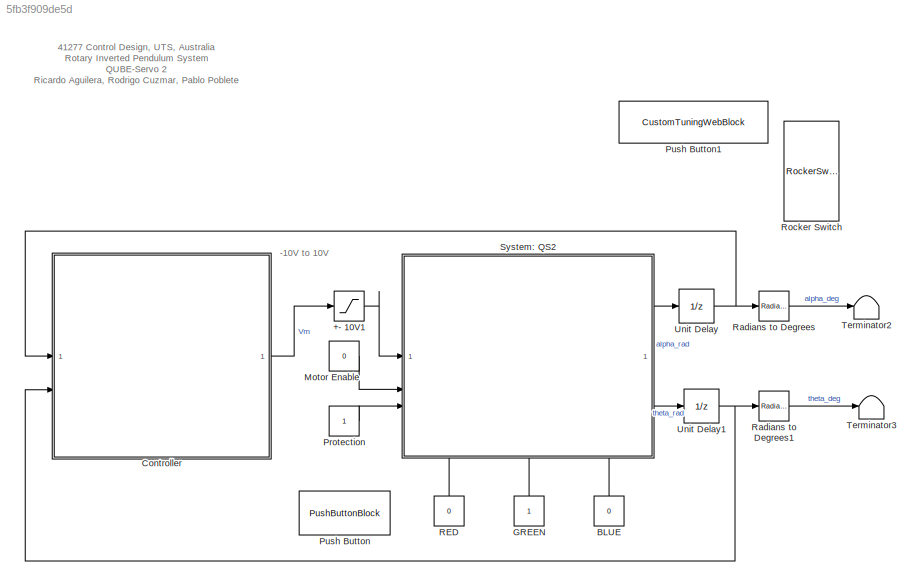
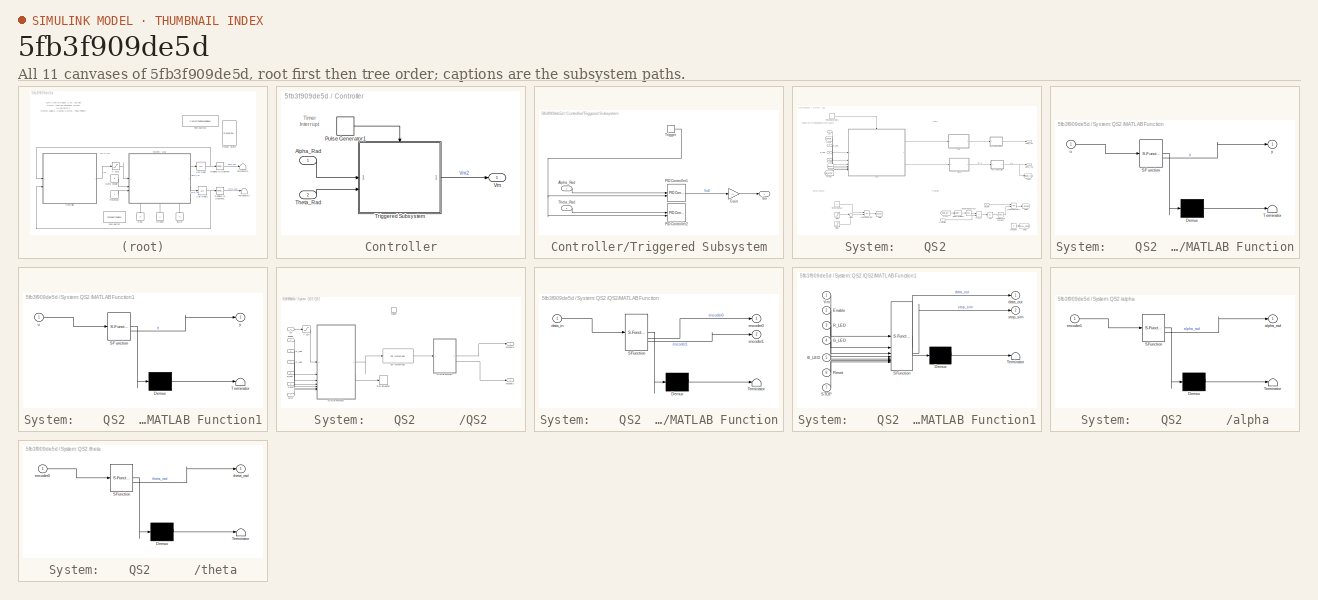
[diagram: thumbnail index - all 11 canvases of the model, root first then tree order]
MODEL slx_5fb3f909de5d
KIND model
CONFIG AbsTol = auto
CONFIG EnableMultiTasking = on
CONFIG FixedStep = auto
CONFIG InitFcn = run('Teensy41_system_init.m');
CONFIG MaxStep = auto
CONFIG MinStep = auto
CONFIG RelTol = 1e-3
CONFIG SampleTimeConstraint = Unconstrained
CONFIG SolverName = FixedStepAuto
CONFIG StartTime = 0.0
CONFIG StopFcn = run('Teensy41_to_save_data.m');
CONFIG StopTime = inf
BLOCK [Saturate] +- 10V1
  LowerLimit = -10
  UpperLimit = 10
BLOCK [Constant] BLUE
  Value = 0
BLOCK [SubSystem] Controller
  TreatAsAtomicUnit = on
BLOCK [Inport] Controller/Alpha_Rad
BLOCK [DiscretePulseGenerator] Controller/Pulse Generator1
  Period = ts
  PulseType = Time based
  PulseWidth = 50
BLOCK [Inport] Controller/Theta_Rad
  Port = 2
BLOCK [SubSystem] Controller/Triggered Subsystem
  TreatAsAtomicUnit = on
BLOCK [Inport] Controller/Triggered Subsystem/Alpha_Rad 
BLOCK [Gain] Controller/Triggered Subsystem/Gain
  Gain = -1
BLOCK [Reference] Controller/Triggered Subsystem/PID Controller1  REF=slpidlib/PID Controller
  LibrarySourceBlock = simulink/Continuous/PID Controller
  SourceBlock = slpidlib/PID Controller
  SourceType = PID 1dof
BLOCK [Reference] Controller/Triggered Subsystem/PID Controller2  REF=slpidlib/PID Controller
  LibrarySourceBlock = simulink/Continuous/PID Controller
  SourceBlock = slpidlib/PID Controller
  SourceType = PID 1dof
BLOCK [Inport] Controller/Triggered Subsystem/Theta_Rad
  Port = 2
BLOCK [TriggerPort] Controller/Triggered Subsystem/Trigger
  ShowOutputPort = on
  StatesWhenEnabling = held
  VariantControl = (inherit)
BLOCK [Outport] Controller/Triggered Subsystem/Vm
BLOCK [Outport] Controller/Vm
BLOCK [Constant] GREEN
BLOCK [Constant] Motor Enable
  Value = 0
BLOCK [Constant] Protection
BLOCK [PushButtonBlock] Push Button
  ButtonText = Sensor Reset
  OffValue = 0.000000
BLOCK [CustomTuningWebBlock] Push Button1
  Configuration = {"components":[{"name":"BackgroundImageComponent","settings":{"image":{"size":[0,0],"src":"default","srcOrientation":"horizontal"},"position":[0,0,1,1],"scaleMode":"0"}},{"name":"ButtonStateComponent","settings":{"buttonType":"momentary","clickFcn":"","image":{"size":[180,45],"srcOrientation":"Right"},"latched":true,"offValue":0,"onValue":"1","position":[0,0,1,1],"pressDelay":"500","pressFcn":"","...<+13251ch>
  LabelPosition = Hide
  ShowInitialText = on
BLOCK [Constant] RED
  Value = 0
BLOCK [Reference] Radians to Degrees  REF=simulink_extras/Transformations/Radians
to Degrees
  SourceBlock = simulink_extras/Transformations/Radians\nto Degrees
  SourceType = RadiansToDegrees
BLOCK [Reference] Radians to Degrees1  REF=simulink_extras/Transformations/Radians
to Degrees
  SourceBlock = simulink_extras/Transformations/Radians\nto Degrees
  SourceType = RadiansToDegrees
BLOCK [RockerSwitchBlock] Rocker Switch
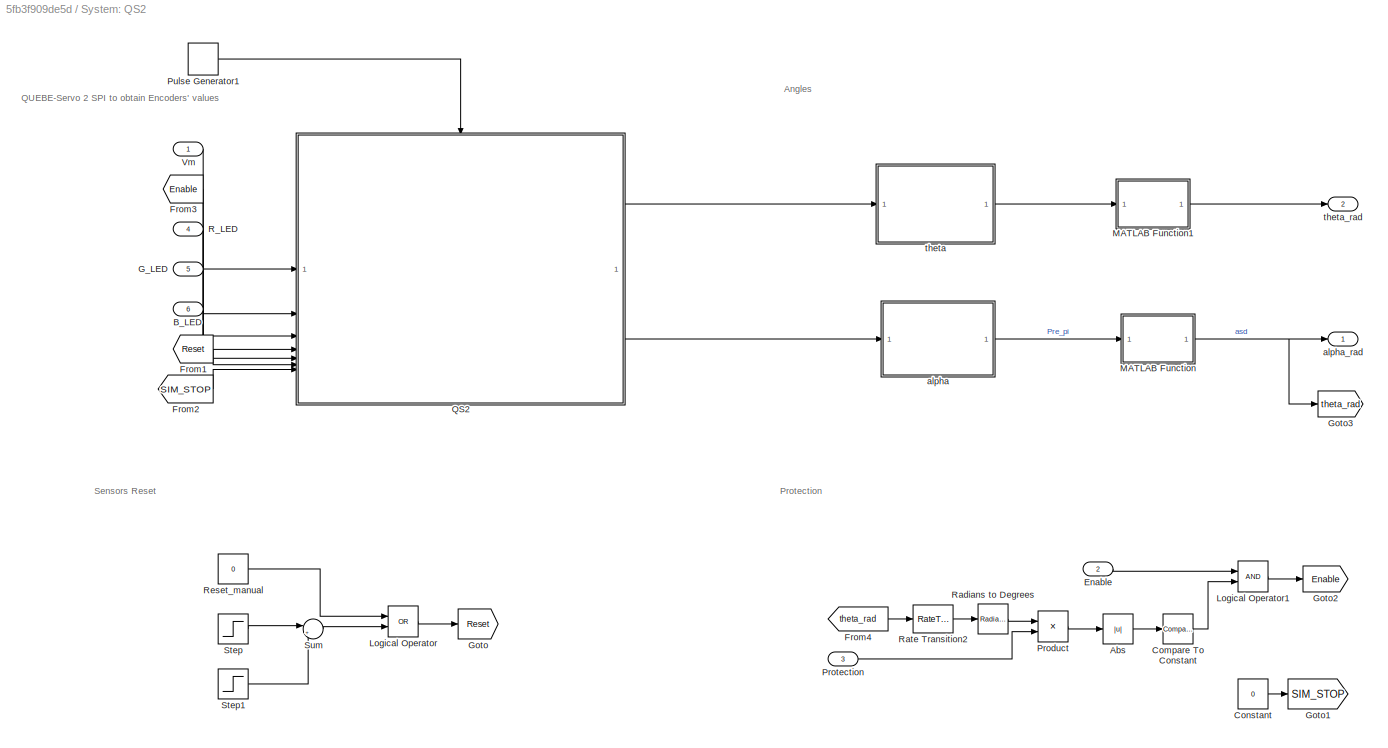
BLOCK [SubSystem] System:    QS2      
  PortSchema = {"entries":[{"content":{"sides":[{"content":{"connectorIds":["In1","In2","In3"]},"type":"ConnectorPlacement.EquallySpacedRectSide","uuid":"48e0e3f9-e6d3-42dc-b033-5bcd410be1b5"},{"content":{"connectorIds":["Out1","Out2"],"side":"RIGHT"},"type":"ConnectorPlacement.EquallySpacedRectSide","uuid":"86fea129-ce51-476b-b6c9-1ef8e5e9eab5"},{"content":{"side":"TOP"},"type":"ConnectorPlacement.EquallySpaced...<+402ch>
BLOCK [Abs] System:    QS2      /Abs
  SaturateOnIntegerOverflow = off
BLOCK [Inport] System:    QS2      /B_LED
  Port = 6
BLOCK [Reference] System:    QS2      /Compare To Constant  REF=simulink/Logic and Bit
Operations/Compare
To Constant
  SourceBlock = simulink/Logic and Bit\nOperations/Compare\nTo Constant
  SourceType = Compare To Constant
BLOCK [Constant] System:    QS2      /Constant
  Value = 0
BLOCK [Inport] System:    QS2      /Enable
  Port = 2
BLOCK [From] System:    QS2      /From1
  GotoTag = Reset
  TagVisibility = global
BLOCK [From] System:    QS2      /From2
  GotoTag = SIM_STOP
  TagVisibility = global
BLOCK [From] System:    QS2      /From3
  GotoTag = Enable
  TagVisibility = global
BLOCK [From] System:    QS2      /From4
  GotoTag = theta_rad
  TagVisibility = global
BLOCK [Inport] System:    QS2      /G_LED
  Port = 5
BLOCK [Goto] System:    QS2      /Goto
  GotoTag = Reset
  TagVisibility = global
BLOCK [Goto] System:    QS2      /Goto1
  GotoTag = SIM_STOP
  TagVisibility = global
BLOCK [Goto] System:    QS2      /Goto2
  GotoTag = Enable
  TagVisibility = global
BLOCK [Goto] System:    QS2      /Goto3
  GotoTag = theta_rad
  TagVisibility = global
BLOCK [Logic] System:    QS2      /Logical Operator
  AllPortsSameDT = off
  Operator = OR
  OutDataTypeStr = boolean
BLOCK [Logic] System:    QS2      /Logical Operator1
  AllPortsSameDT = off
  OutDataTypeStr = boolean
BLOCK [SubSystem] System:    QS2      /MATLAB Function
  ErrorFcn = Stateflow.Translate.translate
  PermitHierarchicalResolution = ExplicitOnly
  SFBlockType = MATLAB Function
  TreatAsAtomicUnit = on
BLOCK [Demux] System:    QS2      /MATLAB Function/ Demux 
  Outputs = 1
BLOCK [S-Function] System:    QS2      /MATLAB Function/ SFunction 
  EnableBusSupport = on
  FunctionName = sf_sfun
  PortCounts = [1 2]
  SFcnIsStateOwnerBlock = off
  SFunctionDeploymentMode = off
  Tag = Stateflow S-Function 3
BLOCK [Terminator] System:    QS2      /MATLAB Function/ Terminator 
BLOCK [Inport] System:    QS2      /MATLAB Function/u
BLOCK [Outport] System:    QS2      /MATLAB Function/y
BLOCK [SubSystem] System:    QS2      /MATLAB Function1
  ErrorFcn = Stateflow.Translate.translate
  PermitHierarchicalResolution = ExplicitOnly
  SFBlockType = MATLAB Function
  TreatAsAtomicUnit = on
BLOCK [Demux] System:    QS2      /MATLAB Function1/ Demux 
  Outputs = 1
BLOCK [S-Function] System:    QS2      /MATLAB Function1/ SFunction 
  EnableBusSupport = on
  FunctionName = sf_sfun
  PortCounts = [1 2]
  SFcnIsStateOwnerBlock = off
  SFunctionDeploymentMode = off
  Tag = Stateflow S-Function 5
BLOCK [Terminator] System:    QS2      /MATLAB Function1/ Terminator 
BLOCK [Inport] System:    QS2      /MATLAB Function1/u
BLOCK [Outport] System:    QS2      /MATLAB Function1/y
BLOCK [Product] System:    QS2      /Product
BLOCK [Inport] System:    QS2      /Protection
  Port = 3
BLOCK [DiscretePulseGenerator] System:    QS2      /Pulse Generator1
  Period = ts
  PulseType = Time based
  PulseWidth = 50
BLOCK [SubSystem] System:    QS2      /QS2
  TreatAsAtomicUnit = on
BLOCK [Saturate] System:    QS2      /QS2/+- 10V
  LowerLimit = -10
  UpperLimit = 10
BLOCK [Inport] System:    QS2      /QS2/B_LED
  Port = 5
BLOCK [Inport] System:    QS2      /QS2/Enable
  Port = 2
BLOCK [Inport] System:    QS2      /QS2/G_LED
  Port = 4
BLOCK [SubSystem] System:    QS2      /QS2/MATLAB Function
  ErrorFcn = Stateflow.Translate.translate
  PermitHierarchicalResolution = ExplicitOnly
  SFBlockType = MATLAB Function
  TreatAsAtomicUnit = on
BLOCK [Demux] System:    QS2      /QS2/MATLAB Function/ Demux 
  Outputs = 1
BLOCK [S-Function] System:    QS2      /QS2/MATLAB Function/ SFunction 
  EnableBusSupport = on
  FunctionName = sf_sfun
  PortCounts = [1 3]
  SFcnIsStateOwnerBlock = off
  SFunctionDeploymentMode = off
  Tag = Stateflow S-Function 6
BLOCK [Terminator] System:    QS2      /QS2/MATLAB Function/ Terminator 
BLOCK [Inport] System:    QS2      /QS2/MATLAB Function/data_in
BLOCK [Outport] System:    QS2      /QS2/MATLAB Function/encoder0
BLOCK [Outport] System:    QS2      /QS2/MATLAB Function/encoder1
  Port = 2
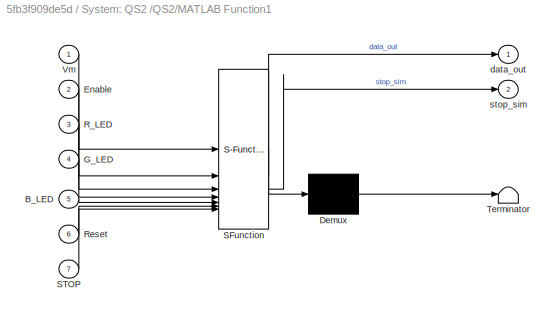
BLOCK [SubSystem] System:    QS2      /QS2/MATLAB Function1
  ErrorFcn = Stateflow.Translate.translate
  PermitHierarchicalResolution = ExplicitOnly
  SFBlockType = MATLAB Function
  TreatAsAtomicUnit = on
BLOCK [Demux] System:    QS2      /QS2/MATLAB Function1/ Demux 
  Outputs = 1
BLOCK [S-Function] System:    QS2      /QS2/MATLAB Function1/ SFunction 
  EnableBusSupport = on
  FunctionName = sf_sfun
  PortCounts = [7 3]
  SFcnIsStateOwnerBlock = off
  SFunctionDeploymentMode = off
  Tag = Stateflow S-Function 1
BLOCK [Terminator] System:    QS2      /QS2/MATLAB Function1/ Terminator 
BLOCK [Inport] System:    QS2      /QS2/MATLAB Function1/B_LED
  Port = 5
BLOCK [Inport] System:    QS2      /QS2/MATLAB Function1/Enable
  Port = 2
BLOCK [Inport] System:    QS2      /QS2/MATLAB Function1/G_LED
  Port = 4
BLOCK [Inport] System:    QS2      /QS2/MATLAB Function1/R_LED
  Port = 3
BLOCK [Inport] System:    QS2      /QS2/MATLAB Function1/Reset
  Port = 6
BLOCK [Inport] System:    QS2      /QS2/MATLAB Function1/STOP
  Port = 7
BLOCK [Inport] System:    QS2      /QS2/MATLAB Function1/Vm
BLOCK [Outport] System:    QS2      /QS2/MATLAB Function1/data_out
BLOCK [Outport] System:    QS2      /QS2/MATLAB Function1/stop_sim
  Port = 2
BLOCK [Inport] System:    QS2      /QS2/R_LED
  Port = 3
BLOCK [Inport] System:    QS2      /QS2/Reset
  Port = 6
BLOCK [Reference] System:    QS2      /QS2/SPI WriteRead  REF=arduinolib/SPI WriteRead
  SourceBlock = arduinolib/SPI WriteRead
  SourceProductName = Common
  SourceType = SPI WriteRead
BLOCK [Inport] System:    QS2      /QS2/STOP
  Port = 7
BLOCK [Stop] System:    QS2      /QS2/Stop Simulation
BLOCK [TriggerPort] System:    QS2      /QS2/Trigger
  StatesWhenEnabling = held
  VariantControl = (inherit)
BLOCK [Inport] System:    QS2      /QS2/Vm
BLOCK [Outport] System:    QS2      /QS2/encoder0
BLOCK [Outport] System:    QS2      /QS2/encoder1
  Port = 2
BLOCK [Inport] System:    QS2      /R_LED
  Port = 4
BLOCK [Reference] System:    QS2      /Radians to Degrees  REF=simulink_extras/Transformations/Radians
to Degrees
  SourceBlock = simulink_extras/Transformations/Radians\nto Degrees
  SourceType = RadiansToDegrees
BLOCK [RateTransition] System:    QS2      /Rate Transition2
  OutPortSampleTimeMultiple = 2
  OutPortSampleTimeOpt = Multiple of input port sample time
BLOCK [Constant] System:    QS2      /Reset_manual
  SampleTime = -1
  Value = 0
BLOCK [Step] System:    QS2      /Step
  Time = ts
BLOCK [Step] System:    QS2      /Step1
  After = -1
  Time = 2*ts
BLOCK [Sum] System:    QS2      /Sum
  Inputs = |++
BLOCK [Inport] System:    QS2      /Vm
BLOCK [SubSystem] System:    QS2      /alpha
  ErrorFcn = Stateflow.Translate.translate
  PermitHierarchicalResolution = ExplicitOnly
  SFBlockType = MATLAB Function
  TreatAsAtomicUnit = on
BLOCK [Demux] System:    QS2      /alpha/ Demux 
  Outputs = 1
BLOCK [S-Function] System:    QS2      /alpha/ SFunction 
  EnableBusSupport = on
  FunctionName = sf_sfun
  PortCounts = [1 2]
  SFcnIsStateOwnerBlock = off
  SFunctionDeploymentMode = off
  Tag = Stateflow S-Function 2
BLOCK [Terminator] System:    QS2      /alpha/ Terminator 
BLOCK [Outport] System:    QS2      /alpha/alpha_rad
BLOCK [Inport] System:    QS2      /alpha/encoder1
BLOCK [Outport] System:    QS2      /alpha_rad
BLOCK [SubSystem] System:    QS2      /theta
  ErrorFcn = Stateflow.Translate.translate
  PermitHierarchicalResolution = ExplicitOnly
  SFBlockType = MATLAB Function
  TreatAsAtomicUnit = on
BLOCK [Demux] System:    QS2      /theta/ Demux 
  Outputs = 1
BLOCK [S-Function] System:    QS2      /theta/ SFunction 
  EnableBusSupport = on
  FunctionName = sf_sfun
  PortCounts = [1 2]
  SFcnIsStateOwnerBlock = off
  SFunctionDeploymentMode = off
  Tag = Stateflow S-Function 4
BLOCK [Terminator] System:    QS2      /theta/ Terminator 
BLOCK [Inport] System:    QS2      /theta/encoder0
BLOCK [Outport] System:    QS2      /theta/theta_rad
BLOCK [Outport] System:    QS2      /theta_rad
  Port = 2
BLOCK [Terminator] Terminator2
BLOCK [Terminator] Terminator3
BLOCK [UnitDelay] Unit Delay
  HasFrameUpgradeWarning = on
  SampleTime = -1
BLOCK [UnitDelay] Unit Delay1
  HasFrameUpgradeWarning = on
  SampleTime = -1
ANNOTATION (root): -10V to 10V
ANNOTATION (root): 41277 Control Design, UTS, Australia Rotary Inverted Pendulum System QUBE-Servo 2 Ricardo Aguilera, Rodrigo Cuzmar, Pablo Poblete
ANNOTATION Controller: Timer Interrupt
ANNOTATION System:    QS2      : Angles
ANNOTATION System:    QS2      : Protection
ANNOTATION System:    QS2      : QUEBE-Servo 2 SPI to obtain Encoders' values
ANNOTATION System:    QS2      : Sensors Reset
LINE +- 10V1:1 -> System:    QS2      :1
LINE BLUE:1 -> System:    QS2      :6
LINE Controller/Alpha_Rad:1 -> Controller/Triggered Subsystem:1
LINE Controller/Pulse Generator1:1 -> Controller/Triggered Subsystem:trigger
LINE Controller/Theta_Rad:1 -> Controller/Triggered Subsystem:2
LINE Controller/Triggered Subsystem/Alpha_Rad :1 -> Controller/Triggered Subsystem/PID Controller1:1
LINE Controller/Triggered Subsystem/Gain:1 -> Controller/Triggered Subsystem/Vm:1
LINE Controller/Triggered Subsystem/PID Controller1:1 -> Controller/Triggered Subsystem/Gain:1
LINE Controller/Triggered Subsystem/Theta_Rad:1 -> Controller/Triggered Subsystem/PID Controller2:1
NET Controller/Triggered Subsystem/Trigger:1 -> Controller/Triggered Subsystem/PID Controller1:2, Controller/Triggered Subsystem/PID Controller2:2
LINE Controller/Triggered Subsystem:1 -> Controller/Vm:1
LINE Controller:1 -> +- 10V1:1
LINE GREEN:1 -> System:    QS2      :5
LINE Motor Enable:1 -> System:    QS2      :2
LINE Protection:1 -> System:    QS2      :3
LINE RED:1 -> System:    QS2      :4
LINE Radians to Degrees1:1 -> Terminator3:1
LINE Radians to Degrees:1 -> Terminator2:1
LINE System:    QS2      /Abs:1 -> System:    QS2      /Compare To Constant:1
LINE System:    QS2      /B_LED:1 -> System:    QS2      /QS2:5
LINE System:    QS2      /Compare To Constant:1 -> System:    QS2      /Logical Operator1:2
LINE System:    QS2      /Constant:1 -> System:    QS2      /Goto1:1
LINE System:    QS2      /Enable:1 -> System:    QS2      /Logical Operator1:1
LINE System:    QS2      /From1:1 -> System:    QS2      /QS2:6
LINE System:    QS2      /From2:1 -> System:    QS2      /QS2:7
LINE System:    QS2      /From3:1 -> System:    QS2      /QS2:2
LINE System:    QS2      /From4:1 -> System:    QS2      /Rate Transition2:1
LINE System:    QS2      /G_LED:1 -> System:    QS2      /QS2:4
LINE System:    QS2      /Logical Operator1:1 -> System:    QS2      /Goto2:1
LINE System:    QS2      /Logical Operator:1 -> System:    QS2      /Goto:1
LINE System:    QS2      /MATLAB Function1:1 -> System:    QS2      /theta_rad:1
NET System:    QS2      /MATLAB Function:1 -> System:    QS2      /Goto3:1, System:    QS2      /alpha_rad:1
LINE System:    QS2      /Product:1 -> System:    QS2      /Abs:1
LINE System:    QS2      /Protection:1 -> System:    QS2      /Product:2
LINE System:    QS2      /Pulse Generator1:1 -> System:    QS2      /QS2:trigger
LINE System:    QS2      /QS2/+- 10V:1 -> System:    QS2      /QS2/MATLAB Function1:1
LINE System:    QS2      /QS2/B_LED:1 -> System:    QS2      /QS2/MATLAB Function1:5
LINE System:    QS2      /QS2/Enable:1 -> System:    QS2      /QS2/MATLAB Function1:2
LINE System:    QS2      /QS2/G_LED:1 -> System:    QS2      /QS2/MATLAB Function1:4
LINE System:    QS2      /QS2/MATLAB Function1:1 -> System:    QS2      /QS2/SPI WriteRead:1
LINE System:    QS2      /QS2/MATLAB Function1:2 -> System:    QS2      /QS2/Stop Simulation:1
LINE System:    QS2      /QS2/MATLAB Function:1 -> System:    QS2      /QS2/encoder0:1
LINE System:    QS2      /QS2/MATLAB Function:2 -> System:    QS2      /QS2/encoder1:1
LINE System:    QS2      /QS2/R_LED:1 -> System:    QS2      /QS2/MATLAB Function1:3
LINE System:    QS2      /QS2/Reset:1 -> System:    QS2      /QS2/MATLAB Function1:6
LINE System:    QS2      /QS2/SPI WriteRead:1 -> System:    QS2      /QS2/MATLAB Function:1
LINE System:    QS2      /QS2/STOP:1 -> System:    QS2      /QS2/MATLAB Function1:7
LINE System:    QS2      /QS2/Vm:1 -> System:    QS2      /QS2/+- 10V:1
LINE System:    QS2      /QS2:1 -> System:    QS2      /theta:1
LINE System:    QS2      /QS2:2 -> System:    QS2      /alpha:1
LINE System:    QS2      /R_LED:1 -> System:    QS2      /QS2:3
LINE System:    QS2      /Radians to Degrees:1 -> System:    QS2      /Product:1
LINE System:    QS2      /Rate Transition2:1 -> System:    QS2      /Radians to Degrees:1
LINE System:    QS2      /Reset_manual:1 -> System:    QS2      /Logical Operator:1
LINE System:    QS2      /Step1:1 -> System:    QS2      /Sum:2
LINE System:    QS2      /Step:1 -> System:    QS2      /Sum:1
LINE System:    QS2      /Sum:1 -> System:    QS2      /Logical Operator:2
LINE System:    QS2      /Vm:1 -> System:    QS2      /QS2:1
LINE System:    QS2      /alpha:1 -> System:    QS2      /MATLAB Function:1
LINE System:    QS2      /theta:1 -> System:    QS2      /MATLAB Function1:1
LINE System:    QS2      :1 -> Unit Delay:1
LINE System:    QS2      :2 -> Unit Delay1:1
NET Unit Delay1:1 -> Controller:2, Radians to Degrees1:1
NET Unit Delay:1 -> Controller:1, Radians to Degrees:1
note: NET lines group one-source signal fan-out (src -> all destinations, sorted); 1:1 wires keep LINE
CHART System:    QS2      /QS2/MATLAB Function1 states=1 transitions=1
  STATE_LABEL 'eML_blk_kernel()'
  STATE_LABEL 'SCRIPT:\nfunction [data_out,stop_sim]  = QS2_SPI_write(Vm,Enable,R_LED,G_LED,B_LED,Reset, STOP)\n\npersistent count_startup count_stop stop\nif isempty(count_startup)\n    count_startup = 1; \n    count_stop = 1;\n    stop = false;\nend\n\nif (STOP > 0)\n    stop = true;\nend\n\nstartup = true;\nif (count_startup>=5)\n    startup = false;\n    count_startup = 10;\nend\n\n%% SPI data to be sent\nSPI_data_out = uint8(ze...<+1537ch>'
CHART System:    QS2      /alpha states=1 transitions=1
  STATE_LABEL 'eML_blk_kernel()'
  STATE_LABEL 'SCRIPT:\nfunction alpha_rad = enc2alpha(encoder1)\n%calibrate this angle sensor\n\n\n% encoder provides 2048 counts per rotation\n% when encoder1 = 0 --> alpha = -pi\n\n% Convert E1 counts to pendulum angle (radians)\nalpha_rad = (encoder1/(2048/(2*pi)))-pi;\n% alpha_rad = alpha_rad - pi;\n\n'
CHART System:    QS2      /MATLAB Function states=1 transitions=1
  STATE_LABEL 'eML_blk_kernel()'
  STATE_LABEL 'SCRIPT:\nfunction y = fcn(u)\n\ny = u - pi;\nif u > pi\n    y = u-2*pi;\nelse\n    y = u;\nend\n'
CHART System:    QS2      /theta states=1 transitions=1
  STATE_LABEL 'eML_blk_kernel()'
  STATE_LABEL 'SCRIPT:\nfunction theta_rad = enc2theta(encoder0)\n%calibrate this angle sensor\n\n% encoder provides 2048 counts per rotation\n% when encoder0 = 0 --> alpha = 0\n% negative rotation\n\n% Convert E0 counts to rotation angle (radians)\ntheta_rad = -encoder0/(2048/(2*pi));\n'
CHART System:    QS2      /MATLAB Function1 states=1 transitions=1
  STATE_LABEL 'eML_blk_kernel()'
  STATE_LABEL 'SCRIPT:\nfunction y = fcn(u)\n\nif abs(u) > 2*pi\n    u = 0;\nend\n\ny = u;\n'
CHART System:    QS2      /QS2/MATLAB Function states=1 transitions=1
  STATE_LABEL 'eML_blk_kernel()'
  STATE_LABEL 'SCRIPT:\nfunction [encoder0, encoder1] =  QS2_SPI_read(data_in)\n\n%% Encoder 0\n\n%encoder0 data\nencoder0Byte = [data_in(5), data_in(4), data_in(3)];\n\n% Build 24-bit value\nenc24 = bitor( ...\n          bitor(bitshift(uint32(encoder0Byte(3)),16), ...\n                bitshift(uint32(encoder0Byte(2)),8)), ...\n          uint32(encoder0Byte(1)));\n\n% Sign-extend 24-bit to 32-bit:\n% left shift 8, then arithme...<+589ch>'
CHART  states=0 transitions=0
CHART  states=0 transitions=0
CHART  states=0 transitions=0
CHART  states=0 transitions=0
CHART  states=0 transitions=0
CHART  states=0 transitions=0
